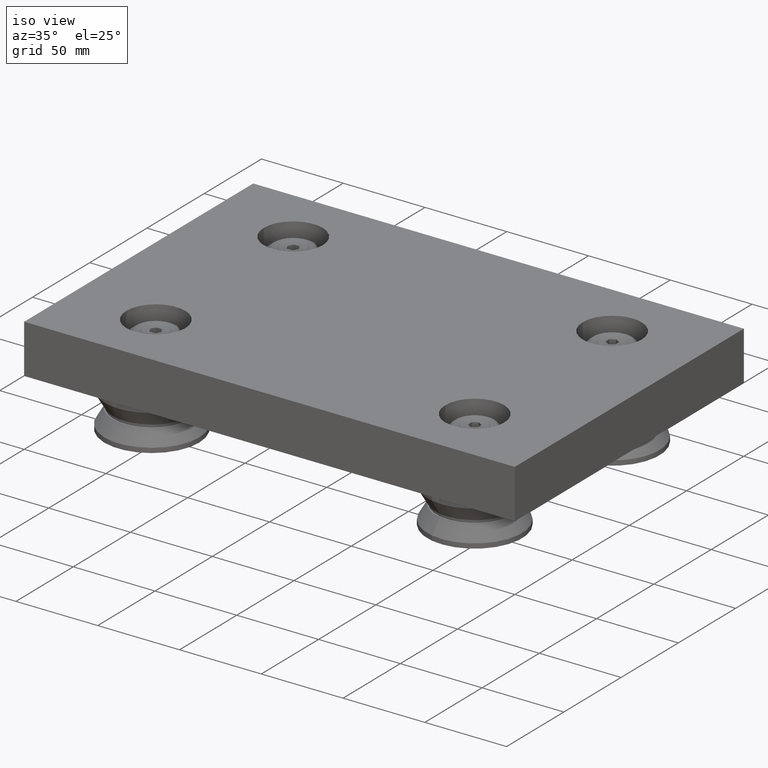
[diagram: clean part render]
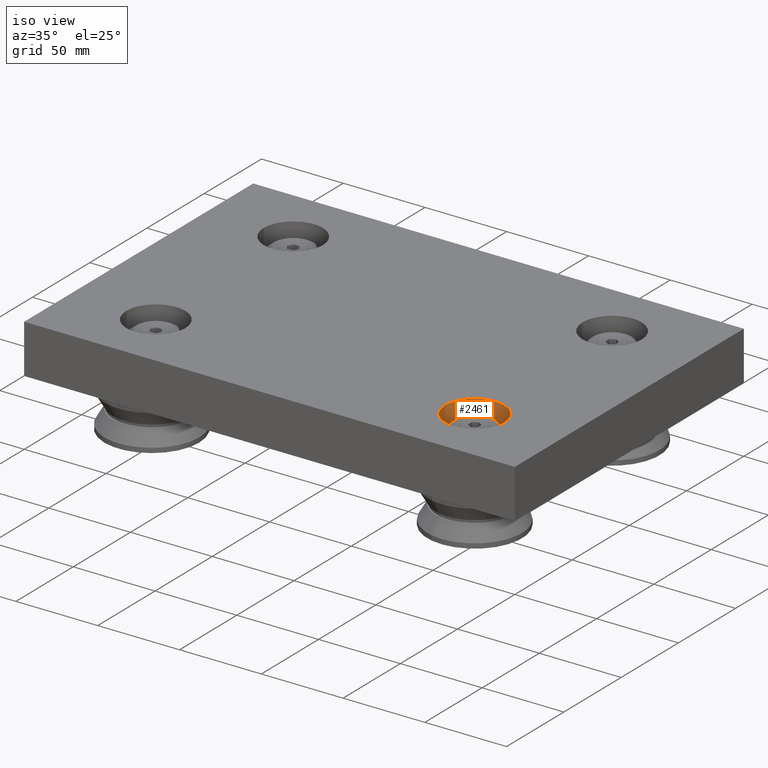
[diagram: same view with one face highlighted and labeled with its STEP entity id]
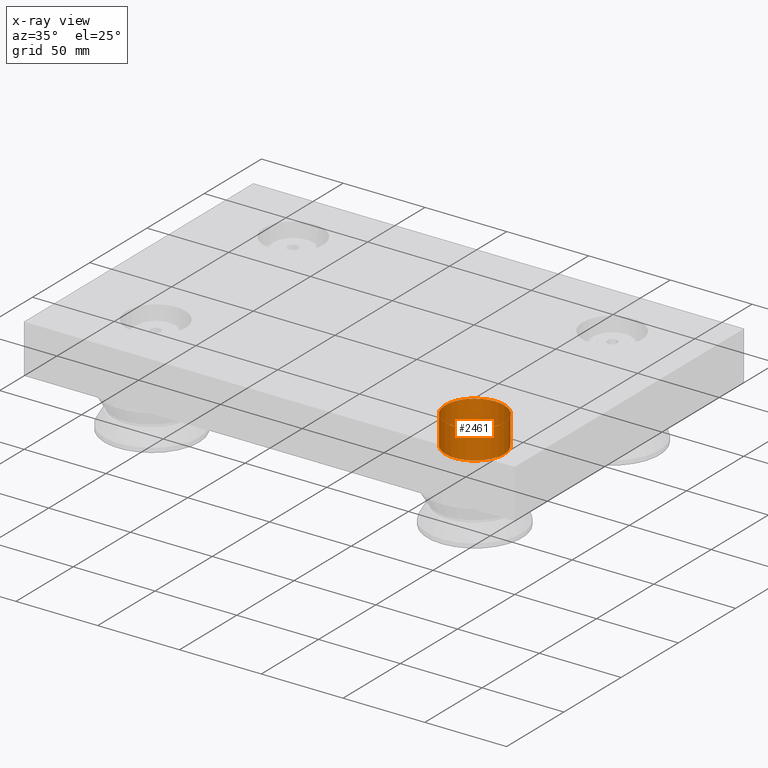
[diagram: x-ray of the same camera — body ghosted, the highlighted face saturated]
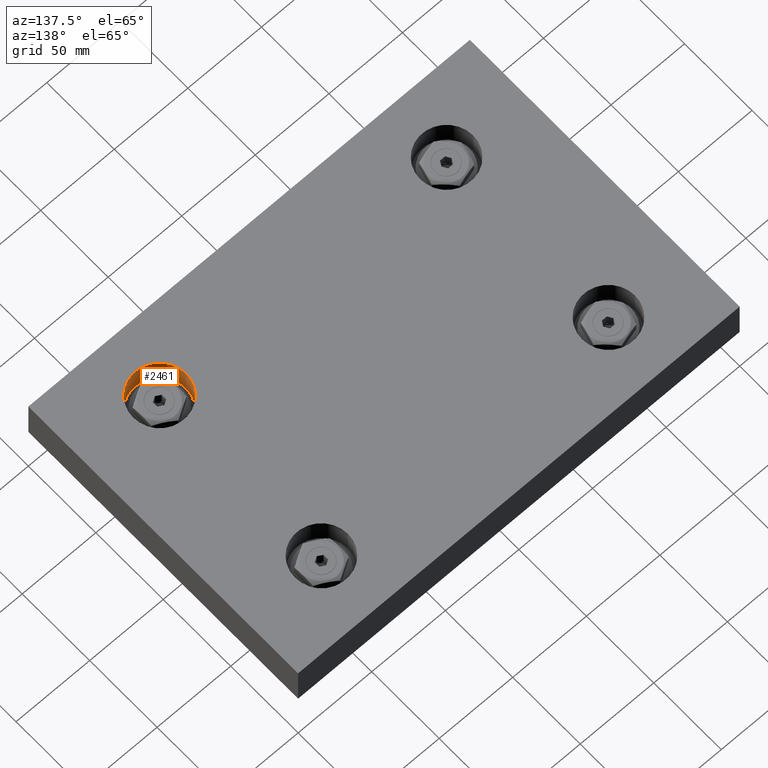
[diagram: same view with one face highlighted and labeled with its STEP entity id]
A machine part, iso view. The second image highlights one B-rep face of the part: STEP entity #2461.
The next image is the same camera in x-ray: the body ghosted, the highlighted face saturated — about 0% of this face is hidden behind the body in this view.
A second angle (auxiliary view) of the same face is appended — the face is thin or edge-on in the first view.
In plain terms, the highlighted cylindrical surface (bore or boss wall) has radius 18 mm, axis along (0, 0, 1).
Its self-contained STEP definition (entity closure, byte-faithful):
#139=LINE('',#3998,#338);
#338=VECTOR('',#3159,18.);
#537=CYLINDRICAL_SURFACE('',#2828,18.);
#616=FACE_OUTER_BOUND('',#778,.T.);
#778=EDGE_LOOP('',(#1674,#1675,#1676,#1677));
#970=CIRCLE('',#2826,18.);
#972=CIRCLE('',#2829,18.);
#1106=VERTEX_POINT('',#3991);
#1108=VERTEX_POINT('',#3996);
#1325=EDGE_CURVE('',#1106,#1106,#970,.T.);
#1327=EDGE_CURVE('',#1108,#1108,#972,.T.);
#1328=EDGE_CURVE('',#1108,#1106,#139,.T.);
#1674=ORIENTED_EDGE('',*,*,#1327,.F.);
#1675=ORIENTED_EDGE('',*,*,#1328,.T.);
#1676=ORIENTED_EDGE('',*,*,#1325,.F.);
#1677=ORIENTED_EDGE('',*,*,#1328,.F.);
#2461=ADVANCED_FACE('',(#616),#537,.F.);
#2826=AXIS2_PLACEMENT_3D('',#3992,#3151,#3152);
#2828=AXIS2_PLACEMENT_3D('',#3995,#3155,#3156);
#2829=AXIS2_PLACEMENT_3D('',#3997,#3157,#3158);
#3151=DIRECTION('center_axis',(0.,0.,1.));
#3152=DIRECTION('ref_axis',(1.,0.,0.));
#3155=DIRECTION('center_axis',(0.,0.,1.));
#3156=DIRECTION('ref_axis',(1.,0.,0.));
#3157=DIRECTION('center_axis',(0.,0.,-1.));
#3158=DIRECTION('ref_axis',(1.,0.,0.));
#3159=DIRECTION('',(0.,0.,-1.));
#3991=CARTESIAN_POINT('',(79.5,-60.,12.5));
#3992=CARTESIAN_POINT('Origin',(97.5,-60.,12.5));
#3995=CARTESIAN_POINT('Origin',(97.5,-60.,21.25));
#3996=CARTESIAN_POINT('',(79.5,-60.,30.));
#3997=CARTESIAN_POINT('Origin',(97.5,-60.,30.));
#3998=CARTESIAN_POINT('',(79.5,-60.,21.25));